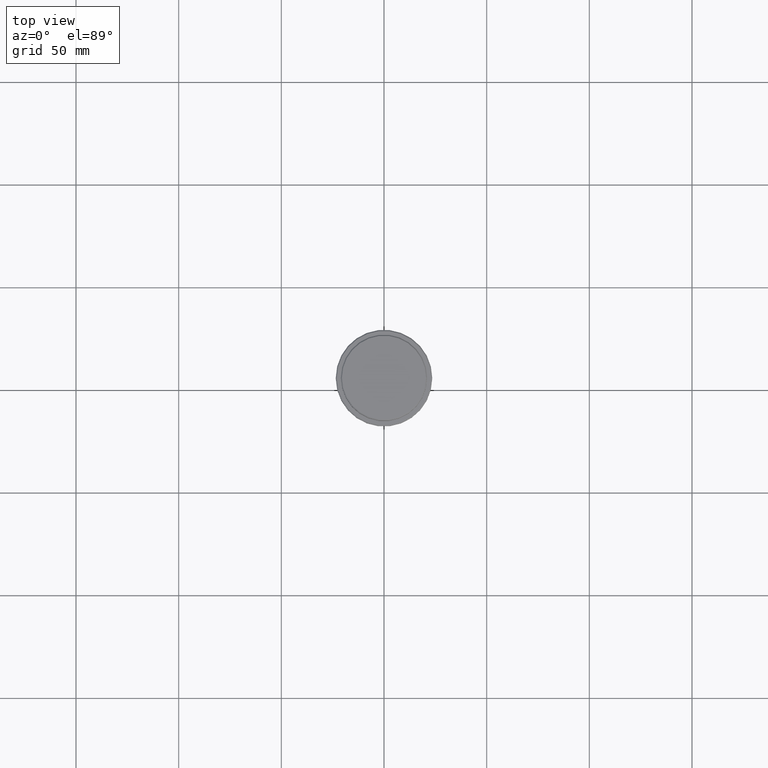
[diagram: clean part render]
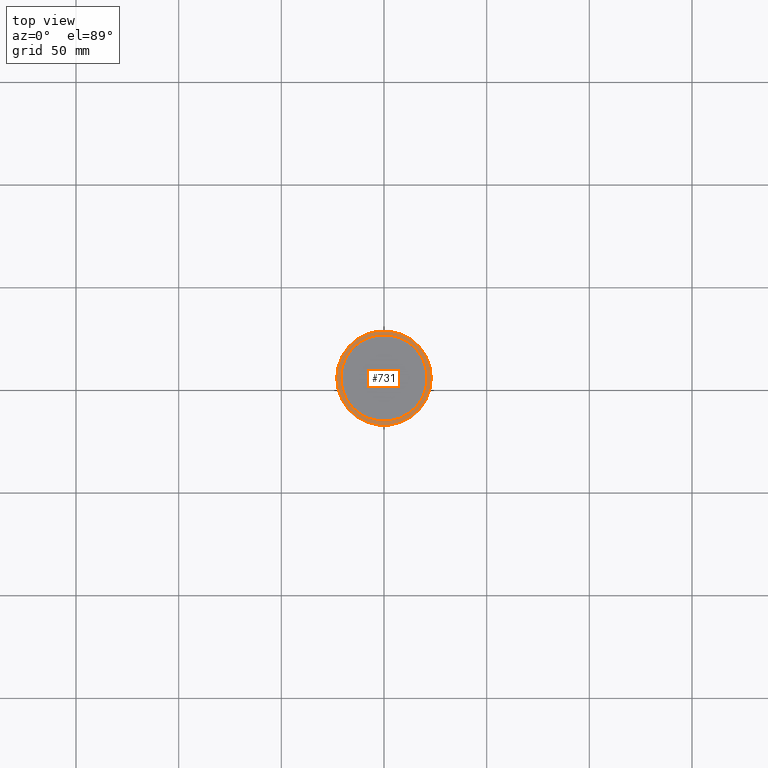
[diagram: same view with one face highlighted and labeled with its STEP entity id]
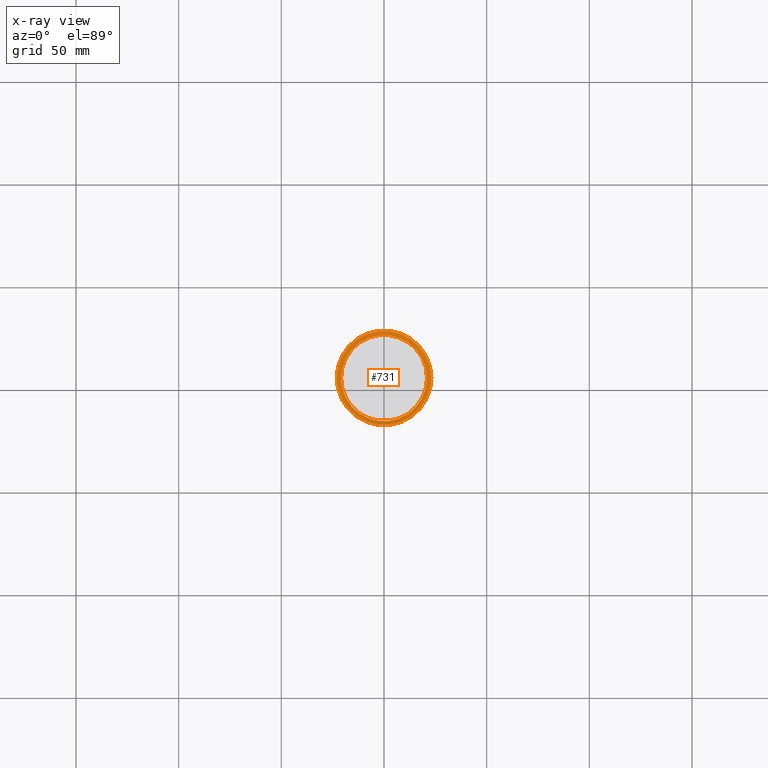
[diagram: x-ray of the same camera — body ghosted, the highlighted face saturated]
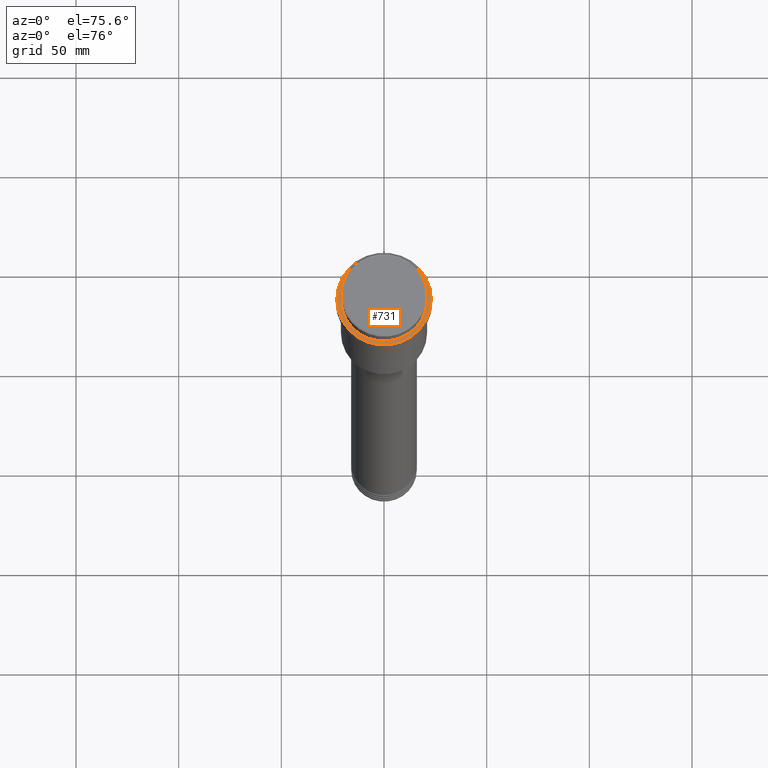
[diagram: same view with one face highlighted and labeled with its STEP entity id]
A machine part, top view. The second image highlights one B-rep face of the part: STEP entity #731.
The next image is the same camera in x-ray: the body ghosted, the highlighted face saturated — about 0% of this face is hidden behind the body in this view.
A second angle (auxiliary view) of the same face is appended — the face is thin or edge-on in the first view.
In plain terms, the highlighted planar face has unit normal (0, -0, 1).
Its self-contained STEP definition (entity closure, byte-faithful):
#15 = AXIS2_PLACEMENT_3D ( 'NONE', #569, #1219, #677 ) ;
#62 = ORIENTED_EDGE ( 'NONE', *, *, #283, .T. ) ;
#152 = CIRCLE ( 'NONE', #336, 23.00000000000002487 ) ;
#220 = DIRECTION ( 'NONE',  ( -0.000000000000000000, -0.000000000000000000, 1.000000000000000000 ) ) ;
#234 = CARTESIAN_POINT ( 'NONE',  ( 0.000000000000000000, 0.000000000000000000, -9.000000000000001776 ) ) ;
#251 = DIRECTION ( 'NONE',  ( 1.000000000000000000, 0.000000000000000000, 0.000000000000000000 ) ) ;
#258 = DIRECTION ( 'NONE',  ( -0.000000000000000000, -0.000000000000000000, 1.000000000000000000 ) ) ;
#268 = DIRECTION ( 'NONE',  ( 0.000000000000000000, 0.000000000000000000, -1.000000000000000000 ) ) ;
#283 = EDGE_CURVE ( 'NONE', #542, #815, #1261, .T. ) ;
#301 = DIRECTION ( 'NONE',  ( 0.000000000000000000, 0.000000000000000000, -1.000000000000000000 ) ) ;
#336 = AXIS2_PLACEMENT_3D ( 'NONE', #355, #258, #809 ) ;
#350 = FACE_OUTER_BOUND ( 'NONE', #1164, .T. ) ;
#355 = CARTESIAN_POINT ( 'NONE',  ( 0.000000000000000000, 0.000000000000000000, -9.000000000000001776 ) ) ;
#437 = PLANE ( 'NONE',  #15 ) ;
#494 = ORIENTED_EDGE ( 'NONE', *, *, #877, .T. ) ;
#524 = AXIS2_PLACEMENT_3D ( 'NONE', #1290, #301, #755 ) ;
#542 = VERTEX_POINT ( 'NONE', #633 ) ;
#569 = CARTESIAN_POINT ( 'NONE',  ( 0.000000000000000000, 20.49999999999999645, -9.000000000000001776 ) ) ;
#633 = CARTESIAN_POINT ( 'NONE',  ( -23.00000000000002487, 0.000000000000000000, -9.000000000000001776 ) ) ;
#638 = VERTEX_POINT ( 'NONE', #1387 ) ;
#655 = ORIENTED_EDGE ( 'NONE', *, *, #679, .T. ) ;
#659 = CARTESIAN_POINT ( 'NONE',  ( 20.99999999999999289, 0.000000000000000000, -9.000000000000001776 ) ) ;
#660 = DIRECTION ( 'NONE',  ( 1.000000000000000000, 0.000000000000000000, 0.000000000000000000 ) ) ;
#672 = AXIS2_PLACEMENT_3D ( 'NONE', #234, #220, #660 ) ;
#677 = DIRECTION ( 'NONE',  ( 1.000000000000000000, 0.000000000000000000, 0.000000000000000000 ) ) ;
#679 = EDGE_CURVE ( 'NONE', #719, #638, #1098, .T. ) ;
#683 = FACE_BOUND ( 'NONE', #754, .T. ) ;
#719 = VERTEX_POINT ( 'NONE', #659 ) ;
#731 = ADVANCED_FACE ( 'NONE', ( #350, #683 ), #437, .T. ) ;
#754 = EDGE_LOOP ( 'NONE', ( #655, #494 ) ) ;
#755 = DIRECTION ( 'NONE',  ( 1.000000000000000000, 0.000000000000000000, 0.000000000000000000 ) ) ;
#791 = CARTESIAN_POINT ( 'NONE',  ( 23.00000000000002487, 2.847303808017597717E-15, -9.000000000000001776 ) ) ;
#809 = DIRECTION ( 'NONE',  ( 1.000000000000000000, 0.000000000000000000, 0.000000000000000000 ) ) ;
#815 = VERTEX_POINT ( 'NONE', #791 ) ;
#877 = EDGE_CURVE ( 'NONE', #638, #719, #1099, .T. ) ;
#879 = AXIS2_PLACEMENT_3D ( 'NONE', #1343, #268, #251 ) ;
#948 = EDGE_CURVE ( 'NONE', #815, #542, #152, .T. ) ;
#1095 = ORIENTED_EDGE ( 'NONE', *, *, #948, .T. ) ;
#1098 = CIRCLE ( 'NONE', #524, 20.99999999999999289 ) ;
#1099 = CIRCLE ( 'NONE', #879, 20.99999999999999289 ) ;
#1164 = EDGE_LOOP ( 'NONE', ( #62, #1095 ) ) ;
#1219 = DIRECTION ( 'NONE',  ( 0.000000000000000000, -0.000000000000000000, 1.000000000000000000 ) ) ;
#1261 = CIRCLE ( 'NONE', #672, 23.00000000000002487 ) ;
#1290 = CARTESIAN_POINT ( 'NONE',  ( 0.000000000000000000, 0.000000000000000000, -9.000000000000001776 ) ) ;
#1343 = CARTESIAN_POINT ( 'NONE',  ( 0.000000000000000000, 0.000000000000000000, -9.000000000000001776 ) ) ;
#1387 = CARTESIAN_POINT ( 'NONE',  ( -20.99999999999999289, 2.571758278209440872E-15, -9.000000000000001776 ) ) ;